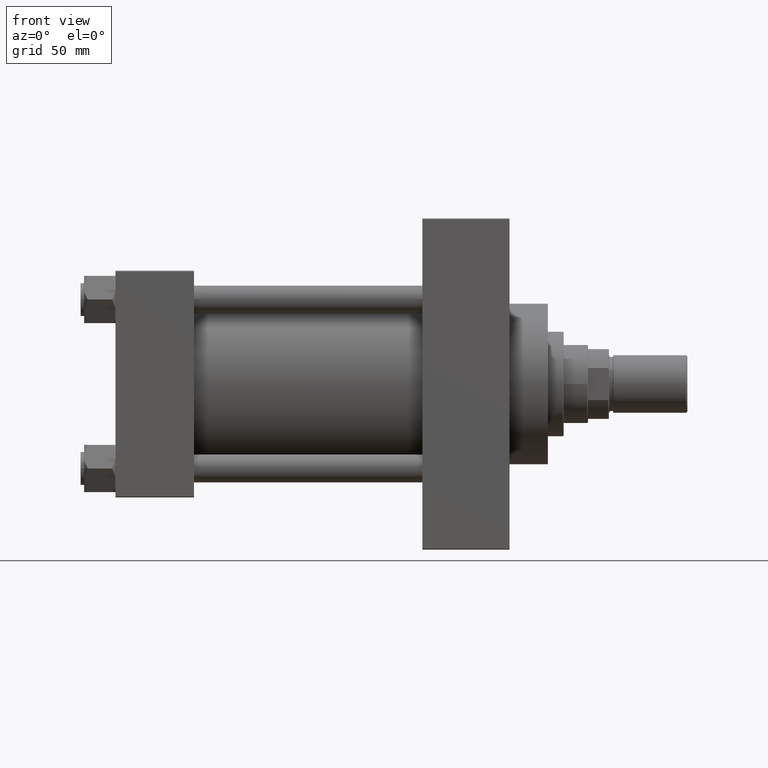
[diagram: clean part render]
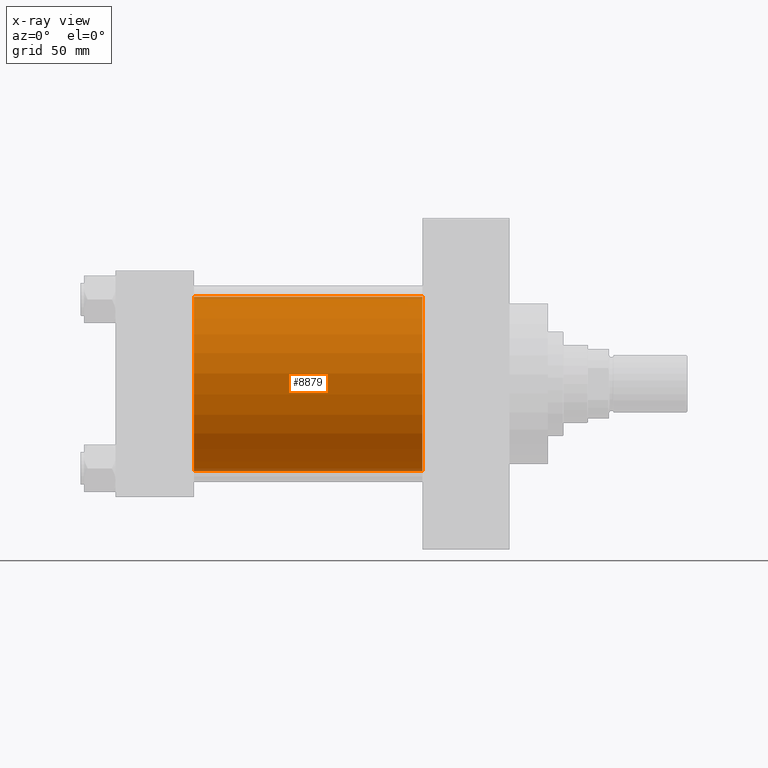
[diagram: x-ray — body ghosted, one internal face saturated and labeled with its STEP entity id]
A machine part, front view, then the same camera in x-ray: the body is ghosted and one INTERNAL B-rep face — a face not visible from any outside direction — is saturated and labeled: STEP entity #8879.
In plain terms, the highlighted cylindrical surface (partial cylindrical patch) has radius 50 mm, axis along (-1, -0, -0).
Its self-contained STEP definition (entity closure, byte-faithful):
#415 = AXIS2_PLACEMENT_3D ( 'NONE', #35195, #15821, #16079 ) ;
#772 = AXIS2_PLACEMENT_3D ( 'NONE', #4589, #50016, #23962 ) ;
#4589 = CARTESIAN_POINT ( 'NONE',  ( 45.00000000000000000, -2.602085213965210642E-15, 0.000000000000000000 ) ) ;
#7275 = CIRCLE ( 'NONE', #772, 50.00000000000000000 ) ;
#7654 = EDGE_CURVE ( 'NONE', #40275, #8241, #25348, .T. ) ;
#7736 = CARTESIAN_POINT ( 'NONE',  ( 176.0000000000000000, -2.602085213965210642E-15, 50.00000000000000000 ) ) ;
#8145 = ORIENTED_EDGE ( 'NONE', *, *, #39140, .F. ) ;
#8241 = VERTEX_POINT ( 'NONE', #35453 ) ;
#8879 = ADVANCED_FACE ( 'NONE', ( #45952 ), #42123, .F. ) ;
#12817 = VERTEX_POINT ( 'NONE', #49833 ) ;
#13225 = EDGE_CURVE ( 'NONE', #40275, #12817, #17541, .T. ) ;
#14089 = CARTESIAN_POINT ( 'NONE',  ( 176.0000000000000000, -2.602085213965210642E-15, 0.000000000000000000 ) ) ;
#15821 = DIRECTION ( 'NONE',  ( 1.000000000000000000, 0.000000000000000000, 0.000000000000000000 ) ) ;
#16079 = DIRECTION ( 'NONE',  ( 0.000000000000000000, 0.000000000000000000, -1.000000000000000000 ) ) ;
#17541 = CIRCLE ( 'NONE', #415, 50.00000000000000000 ) ;
#20550 = VECTOR ( 'NONE', #29187, 1000.000000000000000 ) ;
#21972 = ORIENTED_EDGE ( 'NONE', *, *, #7654, .F. ) ;
#22242 = CARTESIAN_POINT ( 'NONE',  ( 176.0000000000000000, 3.521148781771555838E-15, -50.00000000000000000 ) ) ;
#22477 = VECTOR ( 'NONE', #37808, 1000.000000000000000 ) ;
#23873 = AXIS2_PLACEMENT_3D ( 'NONE', #14089, #45456, #45201 ) ;
#23962 = DIRECTION ( 'NONE',  ( 0.000000000000000000, 0.000000000000000000, -1.000000000000000000 ) ) ;
#25348 = LINE ( 'NONE', #41661, #20550 ) ;
#28425 = EDGE_CURVE ( 'NONE', #12817, #40664, #33992, .T. ) ;
#29187 = DIRECTION ( 'NONE',  ( -1.000000000000000000, -0.000000000000000000, -0.000000000000000000 ) ) ;
#33156 = CARTESIAN_POINT ( 'NONE',  ( 45.00000000000000000, 3.521148781771555838E-15, -50.00000000000000000 ) ) ;
#33992 = LINE ( 'NONE', #22242, #22477 ) ;
#34716 = ORIENTED_EDGE ( 'NONE', *, *, #13225, .T. ) ;
#35195 = CARTESIAN_POINT ( 'NONE',  ( 176.0000000000000000, -2.602085213965210642E-15, 0.000000000000000000 ) ) ;
#35453 = CARTESIAN_POINT ( 'NONE',  ( 45.00000000000000000, -2.602085213965210642E-15, 50.00000000000000000 ) ) ;
#36069 = EDGE_LOOP ( 'NONE', ( #34716, #44935, #8145, #21972 ) ) ;
#37808 = DIRECTION ( 'NONE',  ( -1.000000000000000000, -0.000000000000000000, -0.000000000000000000 ) ) ;
#39140 = EDGE_CURVE ( 'NONE', #8241, #40664, #7275, .T. ) ;
#40275 = VERTEX_POINT ( 'NONE', #7736 ) ;
#40664 = VERTEX_POINT ( 'NONE', #33156 ) ;
#41661 = CARTESIAN_POINT ( 'NONE',  ( 176.0000000000000000, -2.602085213965210642E-15, 50.00000000000000000 ) ) ;
#42123 = CYLINDRICAL_SURFACE ( 'NONE', #23873, 50.00000000000000000 ) ;
#44935 = ORIENTED_EDGE ( 'NONE', *, *, #28425, .T. ) ;
#45201 = DIRECTION ( 'NONE',  ( 0.000000000000000000, 0.000000000000000000, 1.000000000000000000 ) ) ;
#45456 = DIRECTION ( 'NONE',  ( -1.000000000000000000, -0.000000000000000000, -0.000000000000000000 ) ) ;
#45952 = FACE_OUTER_BOUND ( 'NONE', #36069, .T. ) ;
#49833 = CARTESIAN_POINT ( 'NONE',  ( 176.0000000000000000, 3.521148781771555838E-15, -50.00000000000000000 ) ) ;
#50016 = DIRECTION ( 'NONE',  ( 1.000000000000000000, 0.000000000000000000, 0.000000000000000000 ) ) ;